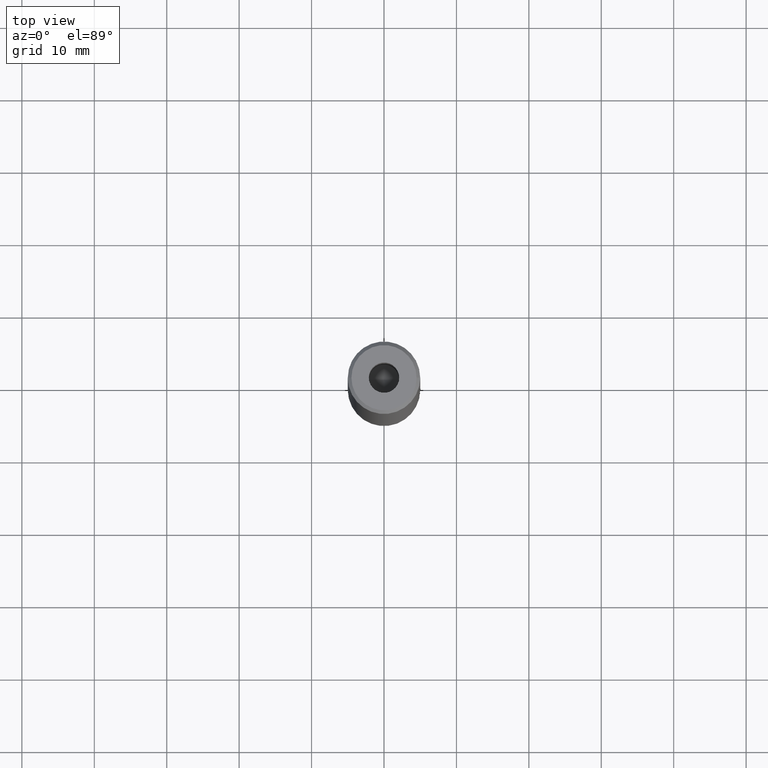
[diagram: clean part render]
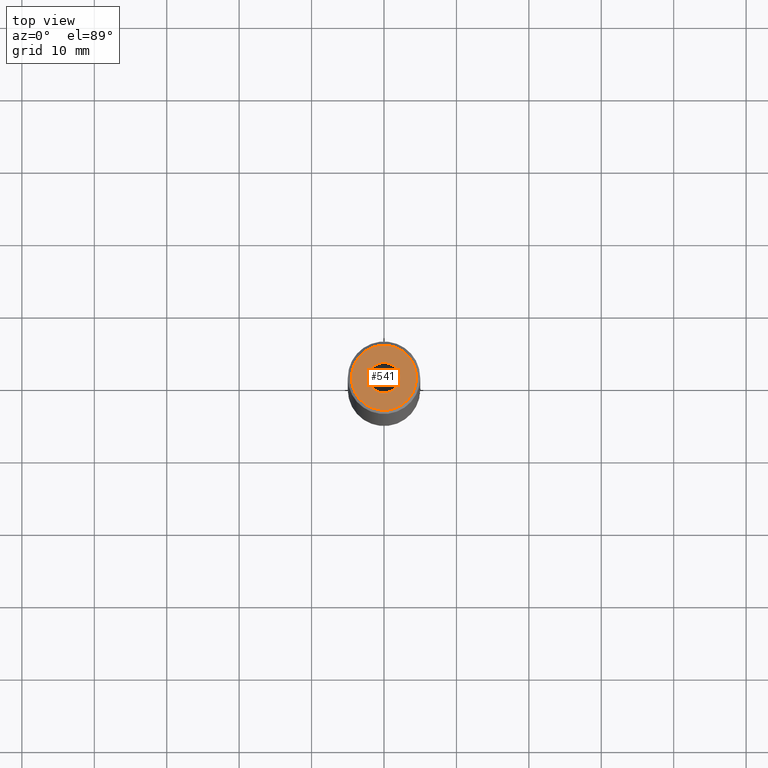
[diagram: same view with one face highlighted and labeled with its STEP entity id]
A machine part, top view. The second image highlights one B-rep face of the part: STEP entity #541.
In plain terms, the highlighted planar face has unit normal (0, -0, 1).
Its self-contained STEP definition (entity closure, byte-faithful):
#2 = EDGE_CURVE ( 'NONE', #250, #122, #245, .T. ) ;
#17 = VERTEX_POINT ( 'NONE', #205 ) ;
#39 = AXIS2_PLACEMENT_3D ( 'NONE', #231, #395, #540 ) ;
#42 = CARTESIAN_POINT ( 'NONE',  ( 4.500000000000017764, 5.817072295949938273E-16, 0.000000000000000000 ) ) ;
#47 = DIRECTION ( 'NONE',  ( -0.000000000000000000, -0.000000000000000000, 1.000000000000000000 ) ) ;
#68 = DIRECTION ( 'NONE',  ( -0.000000000000000000, -0.000000000000000000, 1.000000000000000000 ) ) ;
#106 = CARTESIAN_POINT ( 'NONE',  ( 0.000000000000000000, 0.000000000000000000, 0.000000000000000000 ) ) ;
#109 = DIRECTION ( 'NONE',  ( 1.000000000000000000, 0.000000000000000000, 0.000000000000000000 ) ) ;
#122 = VERTEX_POINT ( 'NONE', #42 ) ;
#127 = DIRECTION ( 'NONE',  ( 1.000000000000000000, 0.000000000000000000, 0.000000000000000000 ) ) ;
#137 = PLANE ( 'NONE',  #39 ) ;
#153 = VERTEX_POINT ( 'NONE', #315 ) ;
#162 = DIRECTION ( 'NONE',  ( 1.000000000000000000, 0.000000000000000000, 0.000000000000000000 ) ) ;
#182 = FACE_OUTER_BOUND ( 'NONE', #321, .T. ) ;
#191 = EDGE_LOOP ( 'NONE', ( #443, #336 ) ) ;
#205 = CARTESIAN_POINT ( 'NONE',  ( -2.099999999999998757, 2.571758278209439985E-16, -1.990051048614449116E-16 ) ) ;
#231 = CARTESIAN_POINT ( 'NONE',  ( 0.000000000000000000, 0.000000000000000000, 0.000000000000000000 ) ) ;
#245 = CIRCLE ( 'NONE', #484, 4.500000000000017764 ) ;
#250 = VERTEX_POINT ( 'NONE', #530 ) ;
#251 = ORIENTED_EDGE ( 'NONE', *, *, #2, .T. ) ;
#292 = CARTESIAN_POINT ( 'NONE',  ( 0.000000000000000000, 0.000000000000000000, 0.000000000000000000 ) ) ;
#307 = CARTESIAN_POINT ( 'NONE',  ( 0.000000000000000000, 0.000000000000000000, -1.990051048614449116E-16 ) ) ;
#315 = CARTESIAN_POINT ( 'NONE',  ( 2.099999999999998757, 0.000000000000000000, -1.990051048614449116E-16 ) ) ;
#320 = EDGE_CURVE ( 'NONE', #17, #153, #463, .T. ) ;
#321 = EDGE_LOOP ( 'NONE', ( #251, #414 ) ) ;
#331 = DIRECTION ( 'NONE',  ( 1.000000000000000000, 0.000000000000000000, 0.000000000000000000 ) ) ;
#336 = ORIENTED_EDGE ( 'NONE', *, *, #320, .F. ) ;
#354 = AXIS2_PLACEMENT_3D ( 'NONE', #482, #419, #331 ) ;
#374 = CIRCLE ( 'NONE', #508, 4.500000000000017764 ) ;
#395 = DIRECTION ( 'NONE',  ( 0.000000000000000000, -0.000000000000000000, 1.000000000000000000 ) ) ;
#406 = AXIS2_PLACEMENT_3D ( 'NONE', #307, #47, #127 ) ;
#414 = ORIENTED_EDGE ( 'NONE', *, *, #501, .T. ) ;
#419 = DIRECTION ( 'NONE',  ( -0.000000000000000000, -0.000000000000000000, 1.000000000000000000 ) ) ;
#432 = DIRECTION ( 'NONE',  ( -0.000000000000000000, -0.000000000000000000, 1.000000000000000000 ) ) ;
#443 = ORIENTED_EDGE ( 'NONE', *, *, #565, .F. ) ;
#463 = CIRCLE ( 'NONE', #354, 2.099999999999998757 ) ;
#482 = CARTESIAN_POINT ( 'NONE',  ( 0.000000000000000000, 0.000000000000000000, -1.990051048614449116E-16 ) ) ;
#484 = AXIS2_PLACEMENT_3D ( 'NONE', #292, #432, #162 ) ;
#501 = EDGE_CURVE ( 'NONE', #122, #250, #374, .T. ) ;
#508 = AXIS2_PLACEMENT_3D ( 'NONE', #106, #68, #109 ) ;
#530 = CARTESIAN_POINT ( 'NONE',  ( -4.500000000000017764, 0.000000000000000000, 0.000000000000000000 ) ) ;
#532 = CIRCLE ( 'NONE', #406, 2.099999999999998757 ) ;
#540 = DIRECTION ( 'NONE',  ( 1.000000000000000000, 0.000000000000000000, 0.000000000000000000 ) ) ;
#541 = ADVANCED_FACE ( 'NONE', ( #554, #182 ), #137, .T. ) ;
#554 = FACE_BOUND ( 'NONE', #191, .T. ) ;
#565 = EDGE_CURVE ( 'NONE', #153, #17, #532, .T. ) ;